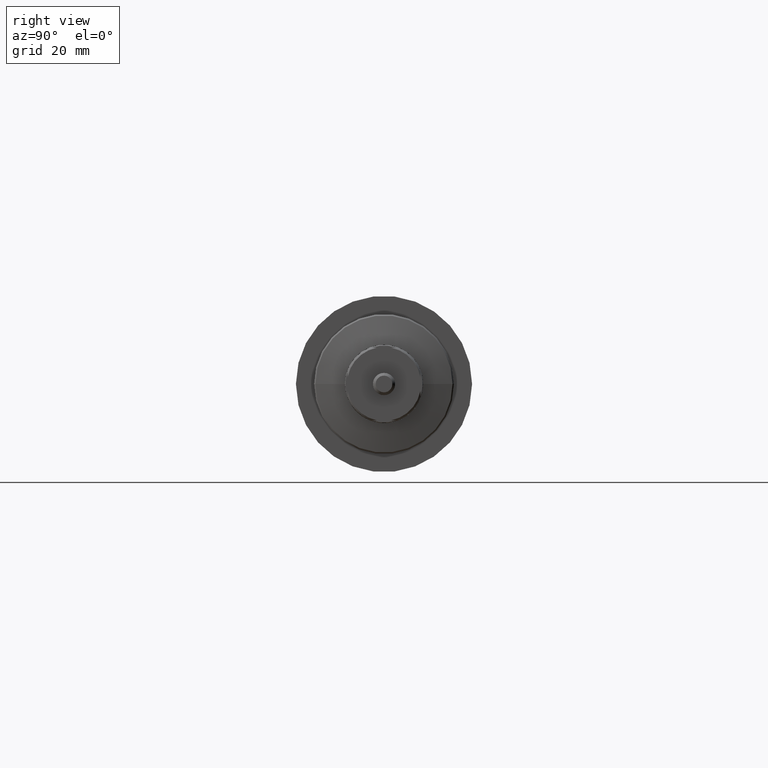
[diagram: clean part render]
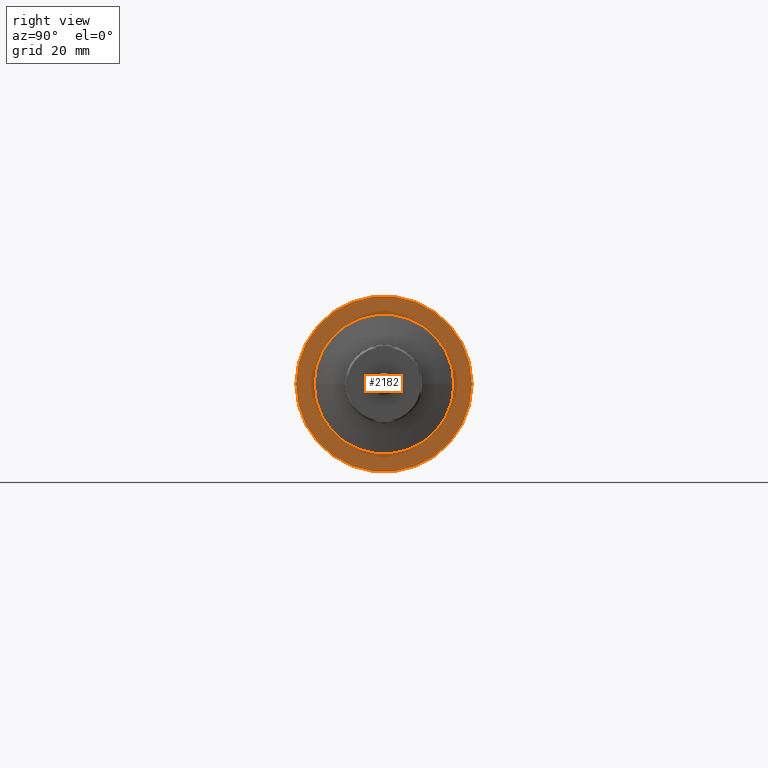
[diagram: same view with one face highlighted and labeled with its STEP entity id]
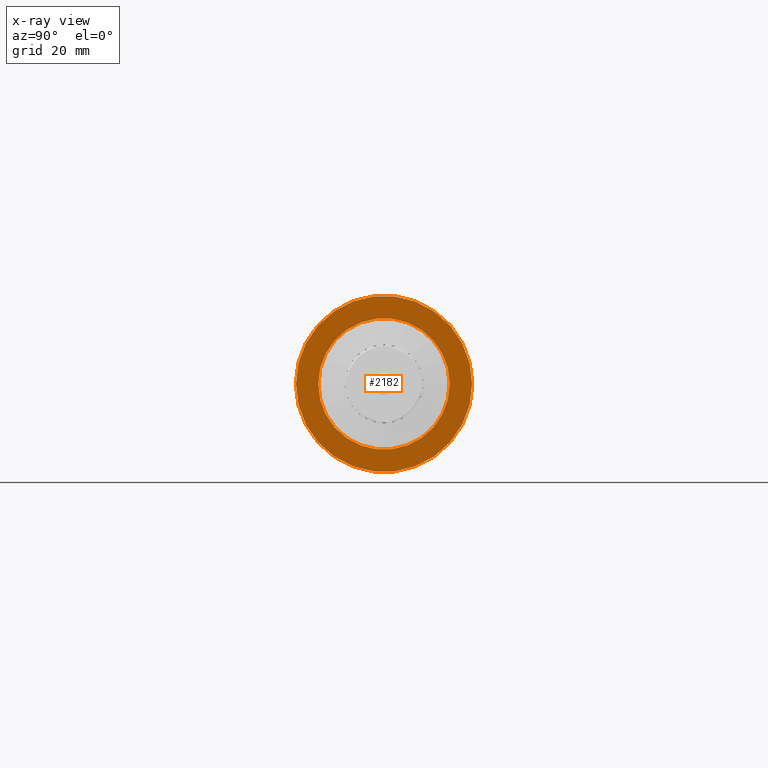
[diagram: x-ray of the same camera — body ghosted, the highlighted face saturated]
A machine part, right view. The second image highlights one B-rep face of the part: STEP entity #2182.
The next image is the same camera in x-ray: the body ghosted, the highlighted face saturated — about 0% of this face is hidden behind the body in this view.
In plain terms, the highlighted planar face has unit normal (-1, -0, 0).
Its self-contained STEP definition (entity closure, byte-faithful):
#19 = DIRECTION ( 'NONE',  ( 1.931394410353556421E-15, -1.000000000000000000, 0.000000000000000000 ) ) ;
#63 = CIRCLE ( 'NONE', #1388, 23.50000000000070344 ) ;
#83 = CARTESIAN_POINT ( 'NONE',  ( -17.99999999999999289, -31.50000000000000000, 0.000000000000000000 ) ) ;
#92 = CARTESIAN_POINT ( 'NONE',  ( -18.00000000000005684, 2.371756733105773926E-14, 0.000000000000000000 ) ) ;
#94 = EDGE_CURVE ( 'NONE', #164, #2602, #2650, .T. ) ;
#164 = VERTEX_POINT ( 'NONE', #2459 ) ;
#297 = DIRECTION ( 'NONE',  ( -1.000000000000000000, -1.931394410353556421E-15, 0.000000000000000000 ) ) ;
#336 = EDGE_CURVE ( 'NONE', #2353, #705, #1698, .T. ) ;
#393 = DIRECTION ( 'NONE',  ( -1.982541115402063729E-15, 1.000000000000000000, 0.000000000000000000 ) ) ;
#427 = CARTESIAN_POINT ( 'NONE',  ( -18.00000000000005684, 2.371756733105773926E-14, 0.000000000000000000 ) ) ;
#526 = FACE_OUTER_BOUND ( 'NONE', #1094, .T. ) ;
#577 = AXIS2_PLACEMENT_3D ( 'NONE', #92, #1153, #2631 ) ;
#705 = VERTEX_POINT ( 'NONE', #2067 ) ;
#911 = EDGE_LOOP ( 'NONE', ( #2487, #2258 ) ) ;
#970 = ORIENTED_EDGE ( 'NONE', *, *, #94, .T. ) ;
#1067 = DIRECTION ( 'NONE',  ( 1.000000000000000000, 1.931394410353556421E-15, -0.000000000000000000 ) ) ;
#1094 = EDGE_LOOP ( 'NONE', ( #2749, #970 ) ) ;
#1153 = DIRECTION ( 'NONE',  ( 1.000000000000000000, 1.931394410353556421E-15, -0.000000000000000000 ) ) ;
#1244 = CARTESIAN_POINT ( 'NONE',  ( -18.00000000000012079, 31.50000000000004263, 0.000000000000000000 ) ) ;
#1271 = DIRECTION ( 'NONE',  ( -1.919268526612579991E-15, 1.000000000000000000, 0.000000000000000000 ) ) ;
#1367 = PLANE ( 'NONE',  #2282 ) ;
#1388 = AXIS2_PLACEMENT_3D ( 'NONE', #2439, #1067, #1271 ) ;
#1573 = FACE_BOUND ( 'NONE', #911, .T. ) ;
#1616 = AXIS2_PLACEMENT_3D ( 'NONE', #427, #1892, #393 ) ;
#1698 = CIRCLE ( 'NONE', #1821, 23.50000000000070344 ) ;
#1821 = AXIS2_PLACEMENT_3D ( 'NONE', #1842, #2069, #2717 ) ;
#1842 = CARTESIAN_POINT ( 'NONE',  ( -18.00000000000004619, 2.371756733105775503E-14, 0.000000000000000000 ) ) ;
#1892 = DIRECTION ( 'NONE',  ( 1.000000000000000000, 1.931394410353556421E-15, -0.000000000000000000 ) ) ;
#2004 = CARTESIAN_POINT ( 'NONE',  ( -18.00000000000000355, -23.50000000000067857, 2.969768487932376647E-15 ) ) ;
#2067 = CARTESIAN_POINT ( 'NONE',  ( -18.00000000000009237, 23.50000000000072831, 0.000000000000000000 ) ) ;
#2069 = DIRECTION ( 'NONE',  ( 1.000000000000000000, 1.931394410353556421E-15, -0.000000000000000000 ) ) ;
#2152 = CIRCLE ( 'NONE', #1616, 31.50000000000002132 ) ;
#2163 = EDGE_CURVE ( 'NONE', #705, #2353, #63, .T. ) ;
#2182 = ADVANCED_FACE ( 'NONE', ( #1573, #526 ), #1367, .F. ) ;
#2258 = ORIENTED_EDGE ( 'NONE', *, *, #336, .F. ) ;
#2282 = AXIS2_PLACEMENT_3D ( 'NONE', #83, #297, #19 ) ;
#2353 = VERTEX_POINT ( 'NONE', #2004 ) ;
#2439 = CARTESIAN_POINT ( 'NONE',  ( -18.00000000000004619, 2.371756733105775503E-14, 0.000000000000000000 ) ) ;
#2459 = CARTESIAN_POINT ( 'NONE',  ( -17.99999999999999645, -31.50000000000000000, 3.857637417314164267E-15 ) ) ;
#2487 = ORIENTED_EDGE ( 'NONE', *, *, #2163, .F. ) ;
#2602 = VERTEX_POINT ( 'NONE', #1244 ) ;
#2631 = DIRECTION ( 'NONE',  ( -1.982541115402063729E-15, 1.000000000000000000, 0.000000000000000000 ) ) ;
#2650 = CIRCLE ( 'NONE', #577, 31.50000000000002132 ) ;
#2717 = DIRECTION ( 'NONE',  ( -1.919268526612579991E-15, 1.000000000000000000, 0.000000000000000000 ) ) ;
#2726 = EDGE_CURVE ( 'NONE', #2602, #164, #2152, .T. ) ;
#2749 = ORIENTED_EDGE ( 'NONE', *, *, #2726, .T. ) ;